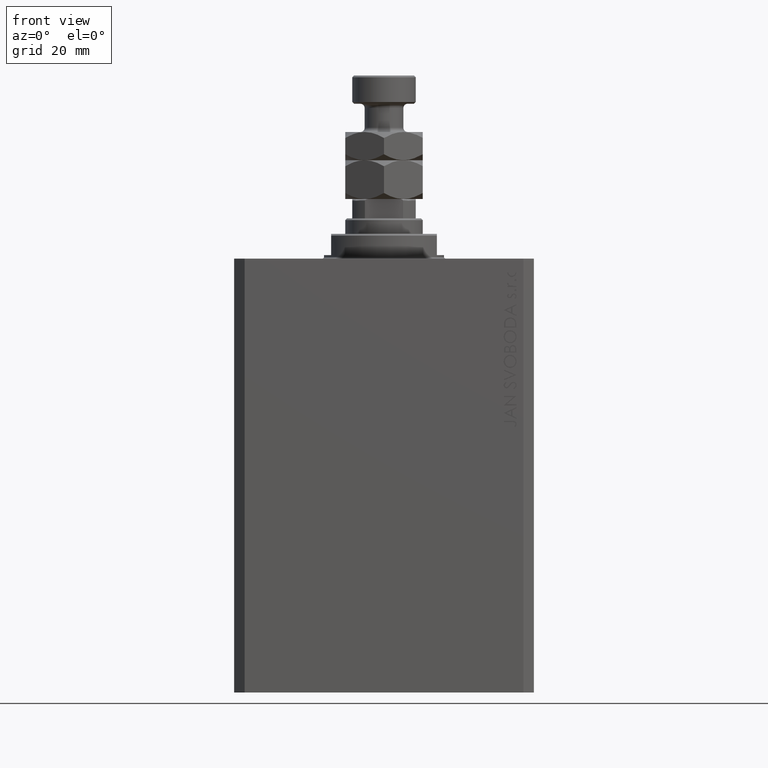
[diagram: clean part render]
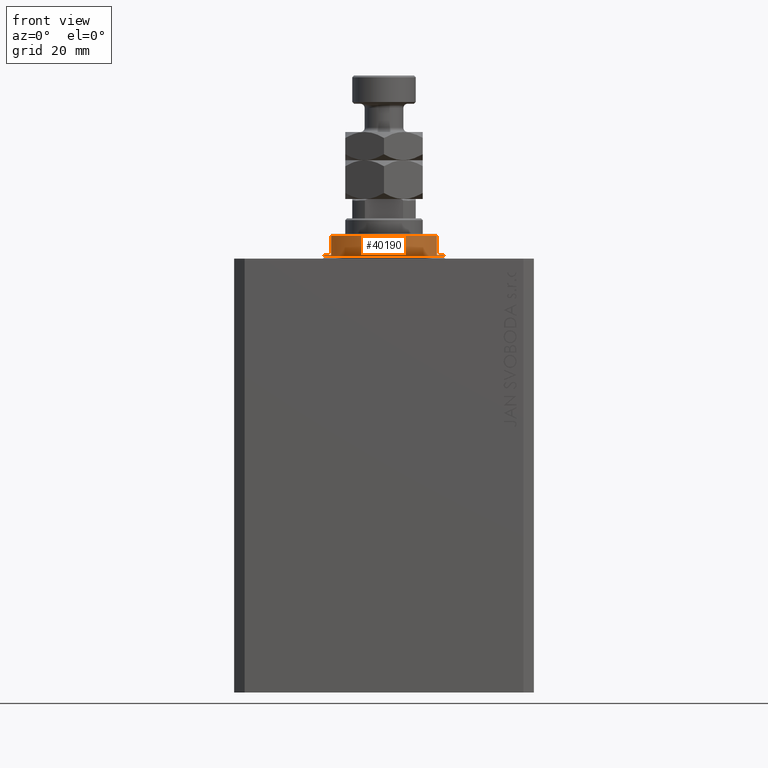
[diagram: same view with one face highlighted and labeled with its STEP entity id]
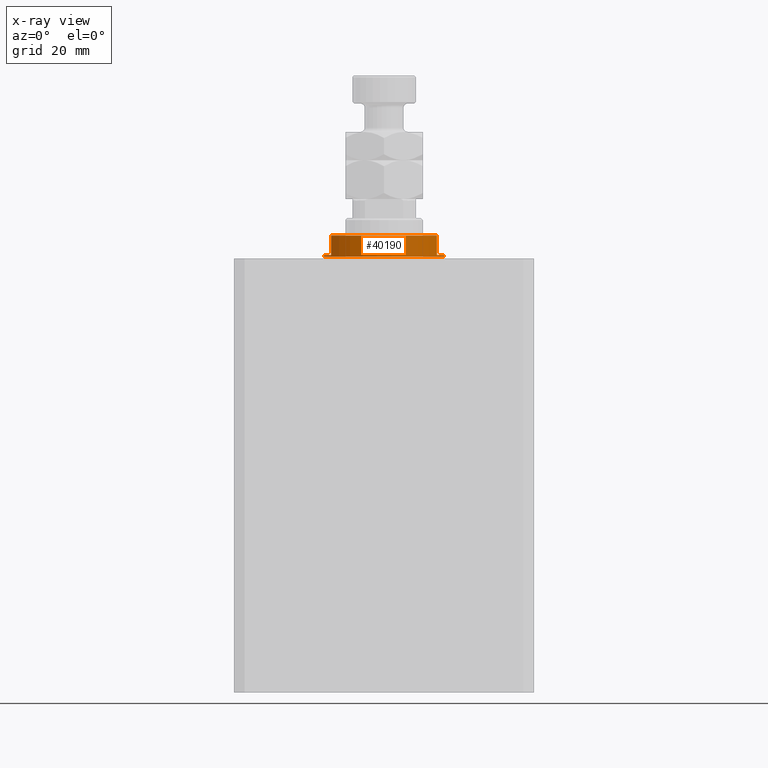
[diagram: x-ray of the same camera — body ghosted, the highlighted face saturated]
A machine part, front view. The second image highlights one B-rep face of the part: STEP entity #40190.
The next image is the same camera in x-ray: the body ghosted, the highlighted face saturated — about 0% of this face is hidden behind the body in this view.
In plain terms, the highlighted cylindrical surface (partial cylindrical patch) has radius 17 mm, axis along (0, 0, -1).
Its self-contained STEP definition (entity closure, byte-faithful):
#522 = EDGE_CURVE ( 'NONE', #23292, #18273, #39919, .T. ) ;
#2329 = CARTESIAN_POINT ( 'NONE',  ( -15.00000000000000000, -8.000000000000001776, -7.000000000000000000 ) ) ;
#3356 = ORIENTED_EDGE ( 'NONE', *, *, #9782, .F. ) ;
#4341 = EDGE_LOOP ( 'NONE', ( #3356, #36948, #42182, #43875, #48704, #21506, #24549, #47774 ) ) ;
#4363 = CARTESIAN_POINT ( 'NONE',  ( -17.00000000000000000, 2.081899558550500280E-15, -1.000000000000000000 ) ) ;
#4478 = CARTESIAN_POINT ( 'NONE',  ( 14.99999999999999645, -8.000000000000003553, -1.000000000000000000 ) ) ;
#4959 = CIRCLE ( 'NONE', #31887, 17.00000000000000000 ) ;
#6228 = CIRCLE ( 'NONE', #45016, 17.00000000000000000 ) ;
#6833 = LINE ( 'NONE', #32876, #7098 ) ;
#7058 = DIRECTION ( 'NONE',  ( -1.000000000000000000, 0.000000000000000000, 0.000000000000000000 ) ) ;
#7098 = VECTOR ( 'NONE', #17977, 1000.000000000000000 ) ;
#7322 = CARTESIAN_POINT ( 'NONE',  ( 0.000000000000000000, 0.000000000000000000, -6.500000000000000000 ) ) ;
#7910 = CARTESIAN_POINT ( 'NONE',  ( 0.000000000000000000, 0.000000000000000000, -1.000000000000000000 ) ) ;
#8022 = CYLINDRICAL_SURFACE ( 'NONE', #9578, 17.00000000000000000 ) ;
#8749 = VECTOR ( 'NONE', #42608, 1000.000000000000000 ) ;
#9578 = AXIS2_PLACEMENT_3D ( 'NONE', #26835, #23133, #16395 ) ;
#9782 = EDGE_CURVE ( 'NONE', #46921, #17175, #37957, .T. ) ;
#10986 = DIRECTION ( 'NONE',  ( -1.000000000000000000, 0.000000000000000000, 0.000000000000000000 ) ) ;
#11746 = DIRECTION ( 'NONE',  ( 0.000000000000000000, 0.000000000000000000, 1.000000000000000000 ) ) ;
#12915 = AXIS2_PLACEMENT_3D ( 'NONE', #23348, #48636, #10986 ) ;
#13942 = VERTEX_POINT ( 'NONE', #24880 ) ;
#16395 = DIRECTION ( 'NONE',  ( 1.000000000000000000, 0.000000000000000000, 0.000000000000000000 ) ) ;
#16630 = EDGE_CURVE ( 'NONE', #18228, #23292, #34302, .T. ) ;
#17175 = VERTEX_POINT ( 'NONE', #45051 ) ;
#17942 = DIRECTION ( 'NONE',  ( 0.000000000000000000, 0.000000000000000000, -1.000000000000000000 ) ) ;
#17977 = DIRECTION ( 'NONE',  ( -0.000000000000000000, -0.000000000000000000, 1.000000000000000000 ) ) ;
#18228 = VERTEX_POINT ( 'NONE', #24703 ) ;
#18273 = VERTEX_POINT ( 'NONE', #24946 ) ;
#21130 = EDGE_CURVE ( 'NONE', #13942, #46921, #48399, .T. ) ;
#21496 = AXIS2_PLACEMENT_3D ( 'NONE', #7910, #27450, #30697 ) ;
#21506 = ORIENTED_EDGE ( 'NONE', *, *, #16630, .F. ) ;
#23133 = DIRECTION ( 'NONE',  ( -0.000000000000000000, -0.000000000000000000, 1.000000000000000000 ) ) ;
#23192 = VECTOR ( 'NONE', #17942, 1000.000000000000000 ) ;
#23292 = VERTEX_POINT ( 'NONE', #4478 ) ;
#23348 = CARTESIAN_POINT ( 'NONE',  ( 0.000000000000000000, 0.000000000000000000, -1.000000000000000000 ) ) ;
#24549 = ORIENTED_EDGE ( 'NONE', *, *, #32217, .T. ) ;
#24703 = CARTESIAN_POINT ( 'NONE',  ( 17.00000000000000000, 0.000000000000000000, -1.000000000000000000 ) ) ;
#24880 = CARTESIAN_POINT ( 'NONE',  ( -14.99999999999999645, -8.000000000000003553, -1.000000000000000000 ) ) ;
#24946 = CARTESIAN_POINT ( 'NONE',  ( 15.00000000000000000, -8.000000000000001776, -6.500000000000000000 ) ) ;
#26272 = DIRECTION ( 'NONE',  ( -0.000000000000000000, -0.000000000000000000, -1.000000000000000000 ) ) ;
#26835 = CARTESIAN_POINT ( 'NONE',  ( 0.000000000000000000, 0.000000000000000000, -7.000000000000000000 ) ) ;
#27450 = DIRECTION ( 'NONE',  ( 0.000000000000000000, 0.000000000000000000, -1.000000000000000000 ) ) ;
#29926 = EDGE_CURVE ( 'NONE', #48663, #18273, #6228, .T. ) ;
#29992 = CARTESIAN_POINT ( 'NONE',  ( 0.000000000000000000, 0.000000000000000000, -0.4999999999999995559 ) ) ;
#30570 = FACE_OUTER_BOUND ( 'NONE', #4341, .T. ) ;
#30697 = DIRECTION ( 'NONE',  ( -1.000000000000000000, 0.000000000000000000, 0.000000000000000000 ) ) ;
#31887 = AXIS2_PLACEMENT_3D ( 'NONE', #29992, #26272, #33950 ) ;
#32217 = EDGE_CURVE ( 'NONE', #18228, #47033, #6833, .T. ) ;
#32876 = CARTESIAN_POINT ( 'NONE',  ( 17.00000000000000000, 0.000000000000000000, -7.000000000000000000 ) ) ;
#33699 = VECTOR ( 'NONE', #47600, 1000.000000000000000 ) ;
#33950 = DIRECTION ( 'NONE',  ( 1.000000000000000000, 0.000000000000000000, 0.000000000000000000 ) ) ;
#34302 = CIRCLE ( 'NONE', #12915, 17.00000000000000000 ) ;
#36551 = LINE ( 'NONE', #2329, #23192 ) ;
#36948 = ORIENTED_EDGE ( 'NONE', *, *, #21130, .F. ) ;
#37957 = LINE ( 'NONE', #38437, #8749 ) ;
#38437 = CARTESIAN_POINT ( 'NONE',  ( -17.00000000000000000, 2.081899558550500280E-15, -7.000000000000000000 ) ) ;
#39422 = CARTESIAN_POINT ( 'NONE',  ( 15.00000000000000000, -8.000000000000001776, -7.000000000000000000 ) ) ;
#39919 = LINE ( 'NONE', #39422, #33699 ) ;
#40190 = ADVANCED_FACE ( 'NONE', ( #30570 ), #8022, .T. ) ;
#42182 = ORIENTED_EDGE ( 'NONE', *, *, #48756, .T. ) ;
#42498 = CARTESIAN_POINT ( 'NONE',  ( 17.00000000000000000, 0.000000000000000000, -0.4999999999999995559 ) ) ;
#42608 = DIRECTION ( 'NONE',  ( -0.000000000000000000, -0.000000000000000000, 1.000000000000000000 ) ) ;
#43875 = ORIENTED_EDGE ( 'NONE', *, *, #29926, .T. ) ;
#45016 = AXIS2_PLACEMENT_3D ( 'NONE', #7322, #11746, #7058 ) ;
#45051 = CARTESIAN_POINT ( 'NONE',  ( -17.00000000000000000, 2.081899558550500280E-15, -0.4999999999999995559 ) ) ;
#45286 = CARTESIAN_POINT ( 'NONE',  ( -15.00000000000000000, -8.000000000000001776, -6.500000000000000888 ) ) ;
#46921 = VERTEX_POINT ( 'NONE', #4363 ) ;
#47033 = VERTEX_POINT ( 'NONE', #42498 ) ;
#47429 = EDGE_CURVE ( 'NONE', #47033, #17175, #4959, .T. ) ;
#47600 = DIRECTION ( 'NONE',  ( 0.000000000000000000, 0.000000000000000000, -1.000000000000000000 ) ) ;
#47774 = ORIENTED_EDGE ( 'NONE', *, *, #47429, .T. ) ;
#48399 = CIRCLE ( 'NONE', #21496, 17.00000000000000000 ) ;
#48636 = DIRECTION ( 'NONE',  ( 0.000000000000000000, 0.000000000000000000, -1.000000000000000000 ) ) ;
#48663 = VERTEX_POINT ( 'NONE', #45286 ) ;
#48704 = ORIENTED_EDGE ( 'NONE', *, *, #522, .F. ) ;
#48756 = EDGE_CURVE ( 'NONE', #13942, #48663, #36551, .T. ) ;